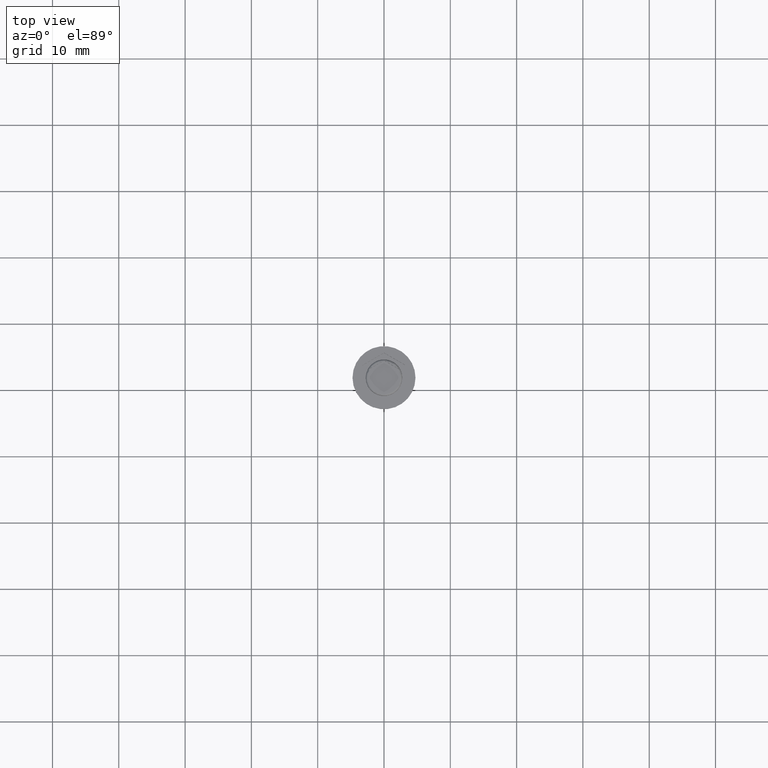
[diagram: clean part render]
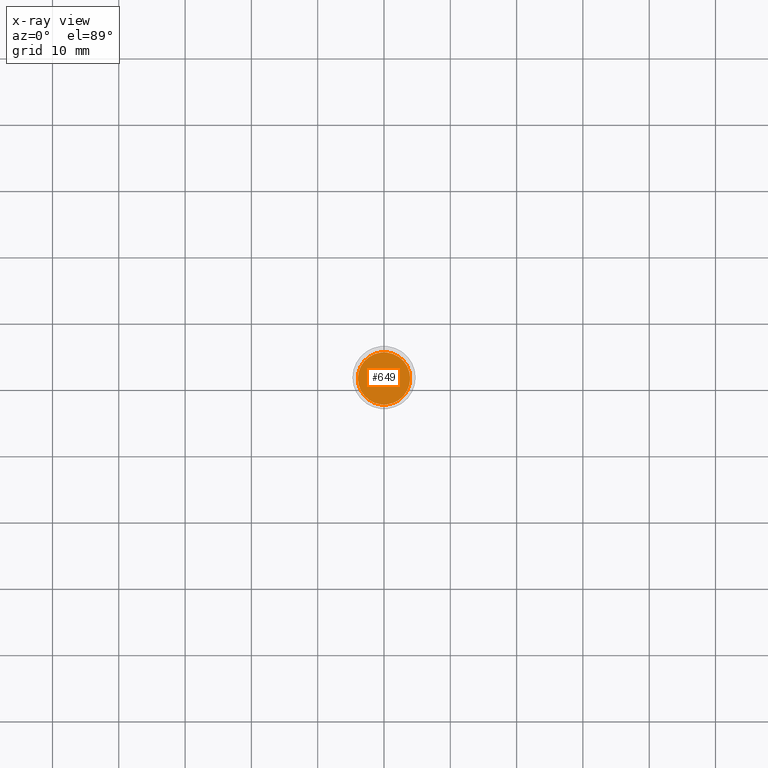
[diagram: x-ray — body ghosted, one internal face saturated and labeled with its STEP entity id]
A machine part, top view, then the same camera in x-ray: the body is ghosted and one INTERNAL B-rep face — a face not visible from any outside direction — is saturated and labeled: STEP entity #649.
In plain terms, the highlighted planar face has unit normal (0, 0, -1).
Its self-contained STEP definition (entity closure, byte-faithful):
#16 = DIRECTION ( 'NONE',  ( -0.000000000000000000, -0.000000000000000000, 1.000000000000000000 ) ) ;
#126 = DIRECTION ( 'NONE',  ( 0.000000000000000000, 0.000000000000000000, -1.000000000000000000 ) ) ;
#143 = AXIS2_PLACEMENT_3D ( 'NONE', #1003, #16, #2218 ) ;
#293 = EDGE_CURVE ( 'NONE', #632, #2049, #453, .T. ) ;
#343 = CIRCLE ( 'NONE', #143, 3.950000000000001066 ) ;
#453 = CIRCLE ( 'NONE', #970, 3.950000000000001066 ) ;
#466 = EDGE_CURVE ( 'NONE', #2049, #632, #343, .T. ) ;
#573 = CARTESIAN_POINT ( 'NONE',  ( 0.000000000000000000, 0.000000000000000000, -7.500000000000000000 ) ) ;
#632 = VERTEX_POINT ( 'NONE', #1669 ) ;
#649 = ADVANCED_FACE ( 'NONE', ( #1238 ), #1462, .F. ) ;
#725 = CARTESIAN_POINT ( 'NONE',  ( 0.000000000000000000, 0.000000000000000000, -7.500000000000000000 ) ) ;
#909 = ORIENTED_EDGE ( 'NONE', *, *, #293, .T. ) ;
#970 = AXIS2_PLACEMENT_3D ( 'NONE', #573, #1133, #2196 ) ;
#1003 = CARTESIAN_POINT ( 'NONE',  ( 0.000000000000000000, 0.000000000000000000, -7.500000000000000000 ) ) ;
#1133 = DIRECTION ( 'NONE',  ( -0.000000000000000000, -0.000000000000000000, 1.000000000000000000 ) ) ;
#1238 = FACE_OUTER_BOUND ( 'NONE', #1689, .T. ) ;
#1462 = PLANE ( 'NONE',  #2299 ) ;
#1615 = DIRECTION ( 'NONE',  ( -1.000000000000000000, 0.000000000000000000, -0.000000000000000000 ) ) ;
#1669 = CARTESIAN_POINT ( 'NONE',  ( -3.950000000000001066, 0.000000000000000000, -7.500000000000000000 ) ) ;
#1689 = EDGE_LOOP ( 'NONE', ( #909, #2159 ) ) ;
#2049 = VERTEX_POINT ( 'NONE', #2286 ) ;
#2159 = ORIENTED_EDGE ( 'NONE', *, *, #466, .T. ) ;
#2196 = DIRECTION ( 'NONE',  ( -1.000000000000000000, 0.000000000000000000, 0.000000000000000000 ) ) ;
#2218 = DIRECTION ( 'NONE',  ( -1.000000000000000000, 0.000000000000000000, 0.000000000000000000 ) ) ;
#2286 = CARTESIAN_POINT ( 'NONE',  ( 3.950000000000001066, 5.021051876504150343E-16, -7.500000000000000000 ) ) ;
#2299 = AXIS2_PLACEMENT_3D ( 'NONE', #725, #126, #1615 ) ;